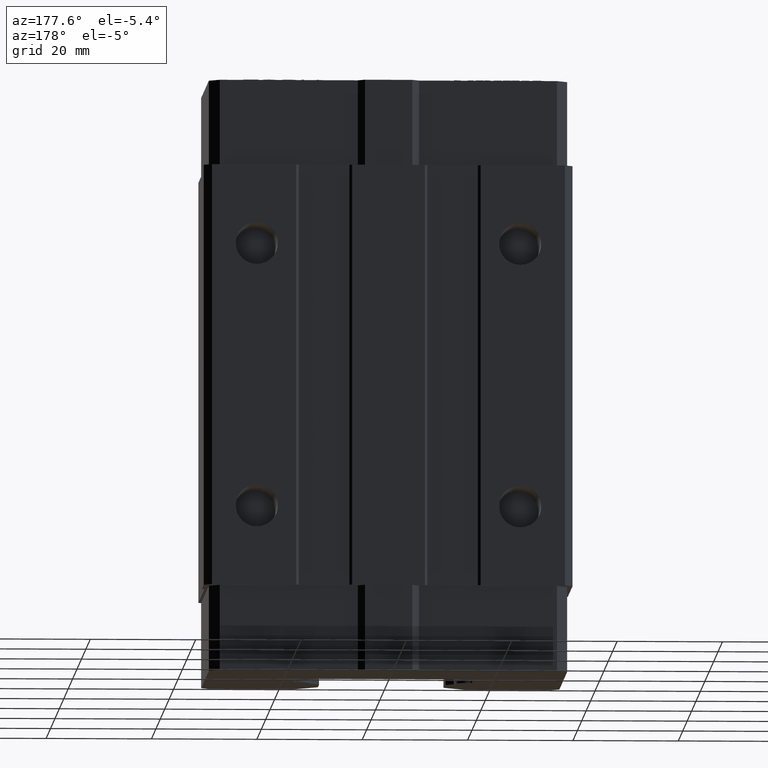
[diagram: clean part render]
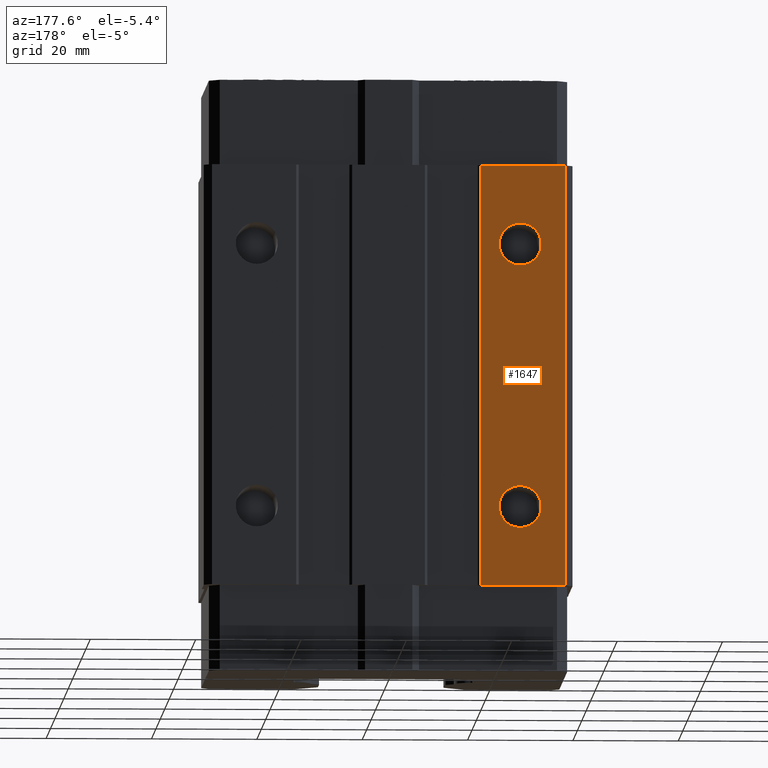
[diagram: same view with one face highlighted and labeled with its STEP entity id]
A machine part, auxiliary view. The second image highlights one B-rep face of the part: STEP entity #1647.
In plain terms, the highlighted planar face has unit normal (0, -1, 0).
Its self-contained STEP definition (entity closure, byte-faithful):
#363 = VERTEX_POINT ( 'NONE', #3332 ) ;
#1046 = EDGE_CURVE ( 'NONE', #1050, #363, #4934, .T. ) ;
#1050 = VERTEX_POINT ( 'NONE', #4926 ) ;
#1053 = EDGE_CURVE ( 'NONE', #1731, #1727, #4925, .T. ) ;
#1057 = EDGE_CURVE ( 'NONE', #1689, #1686, #4978, .T. ) ;
#1574 = EDGE_CURVE ( 'NONE', #1050, #1576, #5300, .T. ) ;
#1576 = VERTEX_POINT ( 'NONE', #5292 ) ;
#1577 = ORIENTED_EDGE ( 'NONE', *, *, #1578, .T. ) ;
#1578 = EDGE_CURVE ( 'NONE', #1576, #1658, #5290, .T. ) ;
#1647 = ADVANCED_FACE ( 'NONE', ( #5424, #5423, #5422 ), #5421, .F. ) ;
#1648 = EDGE_LOOP ( 'NONE', ( #1649, #1650 ) ) ;
#1649 = ORIENTED_EDGE ( 'NONE', *, *, #1053, .F. ) ;
#1650 = ORIENTED_EDGE ( 'NONE', *, *, #1730, .F. ) ;
#1651 = EDGE_LOOP ( 'NONE', ( #1652, #1654 ) ) ;
#1652 = ORIENTED_EDGE ( 'NONE', *, *, #1057, .F. ) ;
#1654 = ORIENTED_EDGE ( 'NONE', *, *, #1688, .F. ) ;
#1655 = EDGE_LOOP ( 'NONE', ( #1656, #1659, #1661, #1577 ) ) ;
#1656 = ORIENTED_EDGE ( 'NONE', *, *, #1657, .F. ) ;
#1657 = EDGE_CURVE ( 'NONE', #363, #1658, #5483, .T. ) ;
#1658 = VERTEX_POINT ( 'NONE', #5478 ) ;
#1659 = ORIENTED_EDGE ( 'NONE', *, *, #1046, .F. ) ;
#1661 = ORIENTED_EDGE ( 'NONE', *, *, #1574, .T. ) ;
#1686 = VERTEX_POINT ( 'NONE', #5496 ) ;
#1688 = EDGE_CURVE ( 'NONE', #1686, #1689, #5495, .T. ) ;
#1689 = VERTEX_POINT ( 'NONE', #5490 ) ;
#1727 = VERTEX_POINT ( 'NONE', #5619 ) ;
#1730 = EDGE_CURVE ( 'NONE', #1727, #1731, #5618, .T. ) ;
#1731 = VERTEX_POINT ( 'NONE', #5613 ) ;
#3332 = CARTESIAN_POINT ( 'NONE',  ( -17.50000000000000000, 19.00000000000000000, 40.00000000000000000 ) ) ;
#4921 = DIRECTION ( 'NONE',  ( 0.0000000000000000000, 0.0000000000000000000, 1.000000000000000000 ) ) ;
#4922 = DIRECTION ( 'NONE',  ( 0.0000000000000000000, 1.000000000000000000, 0.0000000000000000000 ) ) ;
#4923 = CARTESIAN_POINT ( 'NONE',  ( -25.00000000000000000, 19.00000000000000000, -25.00000000000000000 ) ) ;
#4924 = AXIS2_PLACEMENT_3D ( 'NONE', #4923, #4922, #4921 ) ;
#4925 = CIRCLE ( 'NONE', #4924, 4.000000000000000000 ) ;
#4926 = CARTESIAN_POINT ( 'NONE',  ( -17.50000000000000000, 19.00000000000000000, -40.00000000000000000 ) ) ;
#4931 = DIRECTION ( 'NONE',  ( 0.0000000000000000000, 0.0000000000000000000, 1.000000000000000000 ) ) ;
#4932 = VECTOR ( 'NONE', #4931, 1000.000000000000000 ) ;
#4933 = CARTESIAN_POINT ( 'NONE',  ( -17.50000000000000000, 19.00000000000000000, 40.00000000000000000 ) ) ;
#4934 = LINE ( 'NONE', #4933, #4932 ) ;
#4973 = DIRECTION ( 'NONE',  ( 0.0000000000000000000, 0.0000000000000000000, 1.000000000000000000 ) ) ;
#4974 = DIRECTION ( 'NONE',  ( 0.0000000000000000000, 1.000000000000000000, 0.0000000000000000000 ) ) ;
#4975 = CARTESIAN_POINT ( 'NONE',  ( -25.00000000000000000, 19.00000000000000000, 25.00000000000000000 ) ) ;
#4977 = AXIS2_PLACEMENT_3D ( 'NONE', #4975, #4974, #4973 ) ;
#4978 = CIRCLE ( 'NONE', #4977, 4.000000000000000000 ) ;
#5287 = DIRECTION ( 'NONE',  ( 0.0000000000000000000, 0.0000000000000000000, 1.000000000000000000 ) ) ;
#5288 = VECTOR ( 'NONE', #5287, 1000.000000000000000 ) ;
#5289 = CARTESIAN_POINT ( 'NONE',  ( -33.50000000000000000, 19.00000000000000400, 40.00000000000000000 ) ) ;
#5290 = LINE ( 'NONE', #5289, #5288 ) ;
#5292 = CARTESIAN_POINT ( 'NONE',  ( -33.50000000000000000, 19.00000000000000400, -40.00000000000000700 ) ) ;
#5297 = DIRECTION ( 'NONE',  ( -1.000000000000000000, 0.0000000000000000000, 0.0000000000000000000 ) ) ;
#5298 = VECTOR ( 'NONE', #5297, 1000.000000000000000 ) ;
#5299 = CARTESIAN_POINT ( 'NONE',  ( 0.0000000000000000000, 19.00000000000000000, -40.00000000000000000 ) ) ;
#5300 = LINE ( 'NONE', #5299, #5298 ) ;
#5417 = DIRECTION ( 'NONE',  ( 0.0000000000000000000, 0.0000000000000000000, -1.000000000000000000 ) ) ;
#5418 = DIRECTION ( 'NONE',  ( 0.0000000000000000000, -1.000000000000000000, 0.0000000000000000000 ) ) ;
#5419 = CARTESIAN_POINT ( 'NONE',  ( -33.50000000000000000, 19.00000000000000000, 40.00000000000000000 ) ) ;
#5420 = AXIS2_PLACEMENT_3D ( 'NONE', #5419, #5418, #5417 ) ;
#5421 = PLANE ( 'NONE',  #5420 ) ;
#5422 = FACE_OUTER_BOUND ( 'NONE', #1655, .T. ) ;
#5423 = FACE_BOUND ( 'NONE', #1651, .T. ) ;
#5424 = FACE_BOUND ( 'NONE', #1648, .T. ) ;
#5478 = CARTESIAN_POINT ( 'NONE',  ( -33.50000000000000000, 19.00000000000000400, 40.00000000000000000 ) ) ;
#5479 = DIRECTION ( 'NONE',  ( -1.000000000000000000, 0.0000000000000000000, 0.0000000000000000000 ) ) ;
#5480 = VECTOR ( 'NONE', #5479, 1000.000000000000000 ) ;
#5482 = CARTESIAN_POINT ( 'NONE',  ( 0.0000000000000000000, 19.00000000000000000, 40.00000000000000000 ) ) ;
#5483 = LINE ( 'NONE', #5482, #5480 ) ;
#5490 = CARTESIAN_POINT ( 'NONE',  ( -25.00000000000000000, 19.00000000000000000, 29.00000000000000000 ) ) ;
#5491 = DIRECTION ( 'NONE',  ( 0.0000000000000000000, 0.0000000000000000000, 1.000000000000000000 ) ) ;
#5492 = DIRECTION ( 'NONE',  ( 0.0000000000000000000, 1.000000000000000000, 0.0000000000000000000 ) ) ;
#5493 = CARTESIAN_POINT ( 'NONE',  ( -25.00000000000000000, 19.00000000000000000, 25.00000000000000000 ) ) ;
#5494 = AXIS2_PLACEMENT_3D ( 'NONE', #5493, #5492, #5491 ) ;
#5495 = CIRCLE ( 'NONE', #5494, 4.000000000000000000 ) ;
#5496 = CARTESIAN_POINT ( 'NONE',  ( -25.00000000000000000, 19.00000000000000000, 21.00000000000000000 ) ) ;
#5613 = CARTESIAN_POINT ( 'NONE',  ( -25.00000000000000000, 19.00000000000000000, -21.00000000000000000 ) ) ;
#5614 = DIRECTION ( 'NONE',  ( 0.0000000000000000000, 0.0000000000000000000, 1.000000000000000000 ) ) ;
#5615 = DIRECTION ( 'NONE',  ( 0.0000000000000000000, 1.000000000000000000, 0.0000000000000000000 ) ) ;
#5616 = CARTESIAN_POINT ( 'NONE',  ( -25.00000000000000000, 19.00000000000000000, -25.00000000000000000 ) ) ;
#5617 = AXIS2_PLACEMENT_3D ( 'NONE', #5616, #5615, #5614 ) ;
#5618 = CIRCLE ( 'NONE', #5617, 4.000000000000000000 ) ;
#5619 = CARTESIAN_POINT ( 'NONE',  ( -25.00000000000000000, 19.00000000000000000, -29.00000000000000000 ) ) ;